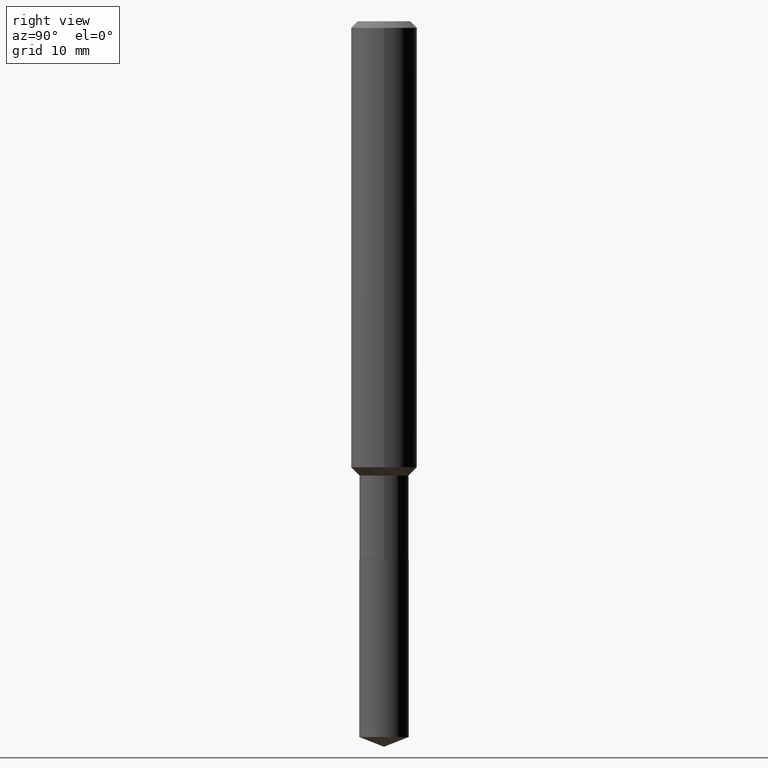
[diagram: clean part render]
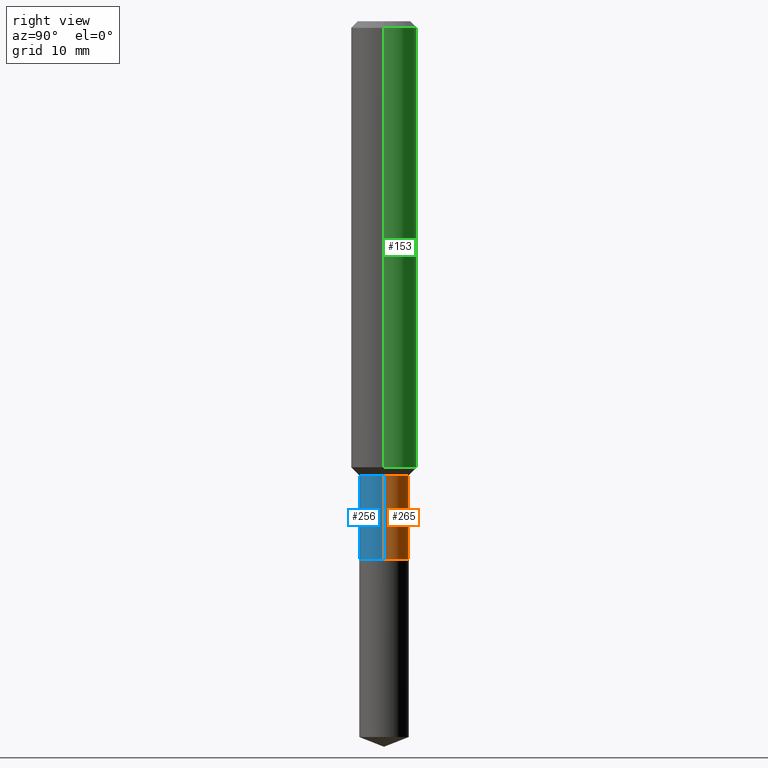
[diagram: same view with three faces highlighted in distinct colors, each labeled with its STEP entity id]
A machine part, right view with three faces highlighted in distinct colors.
Their STEP definitions:

[orange] entity #265 — the highlighted cylindrical surface (edge-blend (fillet) strip) has radius 2.2504 mm, axis along (-0, 0, 1).
#1 = FACE_OUTER_BOUND ( 'NONE', #424, .T. ) ;
#2 = CARTESIAN_POINT ( 'NONE',  ( 0.08859999999999995657, -6.298981483406915301E-15, -1.626899999999999791 ) ) ;
#28 = CARTESIAN_POINT ( 'NONE',  ( -0.08859999999999995657, -5.577440086244953607E-15, -1.626899999999999791 ) ) ;
#35 = DIRECTION ( 'NONE',  ( 1.000000000000000000, -6.982962677686265922E-15, 4.876176775795935232E-29 ) ) ;
#42 = AXIS2_PLACEMENT_3D ( 'NONE', #477, #57, #132 ) ;
#57 = DIRECTION ( 'NONE',  ( -2.445468806185136597E-29, 3.491481338843145583E-15, 1.000000000000000000 ) ) ;
#68 = CARTESIAN_POINT ( 'NONE',  ( 0.08859999999999999820, -7.352361403335894731E-15, -1.928600000000000092 ) ) ;
#70 = EDGE_CURVE ( 'NONE', #281, #315, #410, .T. ) ;
#83 = CARTESIAN_POINT ( 'NONE',  ( 3.978533200782598270E-29, -5.680290990163912349E-15, -1.626899999999999791 ) ) ;
#89 = DIRECTION ( 'NONE',  ( 1.000000000000000000, -6.982962677686261189E-15, 0.000000000000000000 ) ) ;
#93 = CARTESIAN_POINT ( 'NONE',  ( -0.08859999999999998432, 6.295408638834486533E-16, -4.358176489965845566E-30 ) ) ;
#132 = DIRECTION ( 'NONE',  ( 1.000000000000000000, -6.982962677686269077E-15, 0.000000000000000000 ) ) ;
#154 = CARTESIAN_POINT ( 'NONE',  ( 0.08859999999999998432, -6.186904932430030515E-16, 4.320292623355198064E-30 ) ) ;
#159 = VERTEX_POINT ( 'NONE', #28 ) ;
#173 = EDGE_CURVE ( 'NONE', #315, #159, #436, .T. ) ;
#194 = ORIENTED_EDGE ( 'NONE', *, *, #70, .T. ) ;
#197 = ORIENTED_EDGE ( 'NONE', *, *, #483, .F. ) ;
#233 = AXIS2_PLACEMENT_3D ( 'NONE', #83, #236, #89 ) ;
#236 = DIRECTION ( 'NONE',  ( -2.445468806185136597E-29, 3.491481338843145583E-15, 1.000000000000000000 ) ) ;
#238 = DIRECTION ( 'NONE',  ( -2.445468806185136877E-29, 3.491481338843145188E-15, 1.000000000000000000 ) ) ;
#265 = ADVANCED_FACE ( 'NONE', ( #1 ), #300, .T. ) ;
#277 = VECTOR ( 'NONE', #238, 39.37007874015748143 ) ;
#281 = VERTEX_POINT ( 'NONE', #68 ) ;
#296 = AXIS2_PLACEMENT_3D ( 'NONE', #306, #378, #35 ) ;
#300 = CYLINDRICAL_SURFACE ( 'NONE', #296, 0.08859999999999998432 ) ;
#306 = CARTESIAN_POINT ( 'NONE',  ( 0.000000000000000000, 0.000000000000000000, 0.000000000000000000 ) ) ;
#315 = VERTEX_POINT ( 'NONE', #409 ) ;
#342 = ORIENTED_EDGE ( 'NONE', *, *, #173, .T. ) ;
#346 = VECTOR ( 'NONE', #440, 39.37007874015748143 ) ;
#349 = ORIENTED_EDGE ( 'NONE', *, *, #448, .F. ) ;
#378 = DIRECTION ( 'NONE',  ( -2.445468806185136597E-29, 3.491481338843145583E-15, 1.000000000000000000 ) ) ;
#384 = CIRCLE ( 'NONE', #233, 0.08859999999999995657 ) ;
#409 = CARTESIAN_POINT ( 'NONE',  ( -0.08859999999999999820, -5.577440086244953607E-15, -1.928600000000000092 ) ) ;
#410 = CIRCLE ( 'NONE', #42, 0.08859999999999999820 ) ;
#424 = EDGE_LOOP ( 'NONE', ( #194, #342, #349, #197 ) ) ;
#430 = LINE ( 'NONE', #154, #277 ) ;
#436 = LINE ( 'NONE', #93, #346 ) ;
#440 = DIRECTION ( 'NONE',  ( -2.445468806185136877E-29, 3.491481338843145188E-15, 1.000000000000000000 ) ) ;
#448 = EDGE_CURVE ( 'NONE', #471, #159, #384, .T. ) ;
#471 = VERTEX_POINT ( 'NONE', #2 ) ;
#477 = CARTESIAN_POINT ( 'NONE',  ( 4.716331139608654438E-29, -6.733670910092890989E-15, -1.928600000000000092 ) ) ;
#483 = EDGE_CURVE ( 'NONE', #281, #471, #430, .T. ) ;

[blue] entity #256 — the highlighted cylindrical surface (edge-blend (fillet) strip) has radius 2.2504 mm, axis along (-0, 0, 1).
#2 = CARTESIAN_POINT ( 'NONE',  ( 0.08859999999999995657, -6.298981483406915301E-15, -1.626899999999999791 ) ) ;
#7 = ORIENTED_EDGE ( 'NONE', *, *, #173, .F. ) ;
#27 = DIRECTION ( 'NONE',  ( 1.000000000000000000, -6.982962677686261189E-15, 0.000000000000000000 ) ) ;
#28 = CARTESIAN_POINT ( 'NONE',  ( -0.08859999999999995657, -5.577440086244953607E-15, -1.626899999999999791 ) ) ;
#67 = DIRECTION ( 'NONE',  ( -2.445468806185136597E-29, 3.491481338843145583E-15, 1.000000000000000000 ) ) ;
#68 = CARTESIAN_POINT ( 'NONE',  ( 0.08859999999999999820, -7.352361403335894731E-15, -1.928600000000000092 ) ) ;
#90 = ORIENTED_EDGE ( 'NONE', *, *, #163, .T. ) ;
#93 = CARTESIAN_POINT ( 'NONE',  ( -0.08859999999999998432, 6.295408638834486533E-16, -4.358176489965845566E-30 ) ) ;
#99 = AXIS2_PLACEMENT_3D ( 'NONE', #174, #129, #473 ) ;
#129 = DIRECTION ( 'NONE',  ( -2.445468806185136597E-29, 3.491481338843145583E-15, 1.000000000000000000 ) ) ;
#135 = DIRECTION ( 'NONE',  ( -2.445468806185136597E-29, 3.491481338843145583E-15, 1.000000000000000000 ) ) ;
#145 = EDGE_CURVE ( 'NONE', #159, #471, #418, .T. ) ;
#149 = DIRECTION ( 'NONE',  ( 1.000000000000000000, -6.982962677686265922E-15, 4.876176775795935232E-29 ) ) ;
#151 = ORIENTED_EDGE ( 'NONE', *, *, #483, .T. ) ;
#154 = CARTESIAN_POINT ( 'NONE',  ( 0.08859999999999998432, -6.186904932430030515E-16, 4.320292623355198064E-30 ) ) ;
#159 = VERTEX_POINT ( 'NONE', #28 ) ;
#163 = EDGE_CURVE ( 'NONE', #315, #281, #216, .T. ) ;
#173 = EDGE_CURVE ( 'NONE', #315, #159, #436, .T. ) ;
#174 = CARTESIAN_POINT ( 'NONE',  ( 4.716331139608654438E-29, -6.733670910092890989E-15, -1.928600000000000092 ) ) ;
#216 = CIRCLE ( 'NONE', #99, 0.08859999999999999820 ) ;
#238 = DIRECTION ( 'NONE',  ( -2.445468806185136877E-29, 3.491481338843145188E-15, 1.000000000000000000 ) ) ;
#256 = ADVANCED_FACE ( 'NONE', ( #262 ), #339, .T. ) ;
#262 = FACE_OUTER_BOUND ( 'NONE', #433, .T. ) ;
#277 = VECTOR ( 'NONE', #238, 39.37007874015748143 ) ;
#281 = VERTEX_POINT ( 'NONE', #68 ) ;
#315 = VERTEX_POINT ( 'NONE', #409 ) ;
#318 = AXIS2_PLACEMENT_3D ( 'NONE', #420, #67, #149 ) ;
#324 = CARTESIAN_POINT ( 'NONE',  ( 3.978533200782598270E-29, -5.680290990163912349E-15, -1.626899999999999791 ) ) ;
#339 = CYLINDRICAL_SURFACE ( 'NONE', #318, 0.08859999999999998432 ) ;
#340 = ORIENTED_EDGE ( 'NONE', *, *, #145, .F. ) ;
#346 = VECTOR ( 'NONE', #440, 39.37007874015748143 ) ;
#364 = AXIS2_PLACEMENT_3D ( 'NONE', #324, #135, #27 ) ;
#409 = CARTESIAN_POINT ( 'NONE',  ( -0.08859999999999999820, -5.577440086244953607E-15, -1.928600000000000092 ) ) ;
#418 = CIRCLE ( 'NONE', #364, 0.08859999999999995657 ) ;
#420 = CARTESIAN_POINT ( 'NONE',  ( 0.000000000000000000, 0.000000000000000000, 0.000000000000000000 ) ) ;
#430 = LINE ( 'NONE', #154, #277 ) ;
#433 = EDGE_LOOP ( 'NONE', ( #7, #90, #151, #340 ) ) ;
#436 = LINE ( 'NONE', #93, #346 ) ;
#440 = DIRECTION ( 'NONE',  ( -2.445468806185136877E-29, 3.491481338843145188E-15, 1.000000000000000000 ) ) ;
#471 = VERTEX_POINT ( 'NONE', #2 ) ;
#473 = DIRECTION ( 'NONE',  ( 1.000000000000000000, -6.982962677686269077E-15, 0.000000000000000000 ) ) ;
#483 = EDGE_CURVE ( 'NONE', #281, #471, #430, .T. ) ;

[green] entity #153 — the highlighted cylindrical surface (edge-blend (fillet) strip) has radius 2.9997 mm, axis along (-0, 0, 1).
#9 = CARTESIAN_POINT ( 'NONE',  ( 3.906391871000136996E-29, -5.577292290668039694E-15, -1.597399999999999709 ) ) ;
#20 = ORIENTED_EDGE ( 'NONE', *, *, #434, .T. ) ;
#24 = EDGE_CURVE ( 'NONE', #214, #279, #166, .T. ) ;
#54 = CARTESIAN_POINT ( 'NONE',  ( 0.000000000000000000, 0.000000000000000000, 0.000000000000000000 ) ) ;
#59 = CYLINDRICAL_SURFACE ( 'NONE', #426, 0.1181000000000001077 ) ;
#64 = AXIS2_PLACEMENT_3D ( 'NONE', #181, #363, #246 ) ;
#71 = CARTESIAN_POINT ( 'NONE',  ( -0.1181000000000001077, 8.391509709326790846E-16, -5.809262341591049389E-30 ) ) ;
#105 = AXIS2_PLACEMENT_3D ( 'NONE', #9, #314, #432 ) ;
#110 = ORIENTED_EDGE ( 'NONE', *, *, #327, .F. ) ;
#153 = ADVANCED_FACE ( 'NONE', ( #407 ), #59, .T. ) ;
#166 = CIRCLE ( 'NONE', #64, 0.1180999999999999966 ) ;
#167 = VECTOR ( 'NONE', #456, 39.37007874015748143 ) ;
#181 = CARTESIAN_POINT ( 'NONE',  ( 5.776197320209327532E-31, -8.246878922347559293E-17, -0.02362000000000014088 ) ) ;
#186 = CARTESIAN_POINT ( 'NONE',  ( 0.1180999999999999966, -9.071566814582237199E-16, -0.02362000000000014088 ) ) ;
#192 = EDGE_CURVE ( 'NONE', #422, #279, #248, .T. ) ;
#196 = CARTESIAN_POINT ( 'NONE',  ( 0.1181000000000001909, -6.401980182902788745E-15, -1.597399999999999709 ) ) ;
#214 = VERTEX_POINT ( 'NONE', #186 ) ;
#215 = DIRECTION ( 'NONE',  ( -2.445468806185136597E-29, 3.491481338843145583E-15, 1.000000000000000000 ) ) ;
#218 = LINE ( 'NONE', #263, #304 ) ;
#246 = DIRECTION ( 'NONE',  ( 1.000000000000000000, -6.982962677686266711E-15, 0.000000000000000000 ) ) ;
#248 = LINE ( 'NONE', #71, #167 ) ;
#259 = CIRCLE ( 'NONE', #105, 0.1181000000000001909 ) ;
#263 = CARTESIAN_POINT ( 'NONE',  ( 0.1181000000000001077, -8.246878922347488542E-16, 5.758764772215005345E-30 ) ) ;
#279 = VERTEX_POINT ( 'NONE', #414 ) ;
#304 = VECTOR ( 'NONE', #372, 39.37007874015748143 ) ;
#314 = DIRECTION ( 'NONE',  ( -2.445468806185136597E-29, 3.491481338843145583E-15, 1.000000000000000000 ) ) ;
#327 = EDGE_CURVE ( 'NONE', #332, #214, #218, .T. ) ;
#332 = VERTEX_POINT ( 'NONE', #196 ) ;
#350 = CARTESIAN_POINT ( 'NONE',  ( -0.1181000000000001909, -4.738141319735359130E-15, -1.597399999999999709 ) ) ;
#363 = DIRECTION ( 'NONE',  ( -2.445468806185136597E-29, 3.491481338843145583E-15, 1.000000000000000000 ) ) ;
#370 = DIRECTION ( 'NONE',  ( 1.000000000000000000, -6.982962677686266711E-15, 4.876176775795935793E-29 ) ) ;
#372 = DIRECTION ( 'NONE',  ( -2.445468806185136877E-29, 3.491481338843145188E-15, 1.000000000000000000 ) ) ;
#393 = ORIENTED_EDGE ( 'NONE', *, *, #192, .T. ) ;
#407 = FACE_OUTER_BOUND ( 'NONE', #428, .T. ) ;
#414 = CARTESIAN_POINT ( 'NONE',  ( -0.1180999999999999966, -1.990729569013078195E-15, -0.02362000000000014088 ) ) ;
#417 = ORIENTED_EDGE ( 'NONE', *, *, #24, .F. ) ;
#422 = VERTEX_POINT ( 'NONE', #350 ) ;
#426 = AXIS2_PLACEMENT_3D ( 'NONE', #54, #215, #370 ) ;
#428 = EDGE_LOOP ( 'NONE', ( #20, #393, #417, #110 ) ) ;
#432 = DIRECTION ( 'NONE',  ( 1.000000000000000000, -6.982962677686269077E-15, 0.000000000000000000 ) ) ;
#434 = EDGE_CURVE ( 'NONE', #332, #422, #259, .T. ) ;
#456 = DIRECTION ( 'NONE',  ( -2.445468806185136877E-29, 3.491481338843145188E-15, 1.000000000000000000 ) ) ;